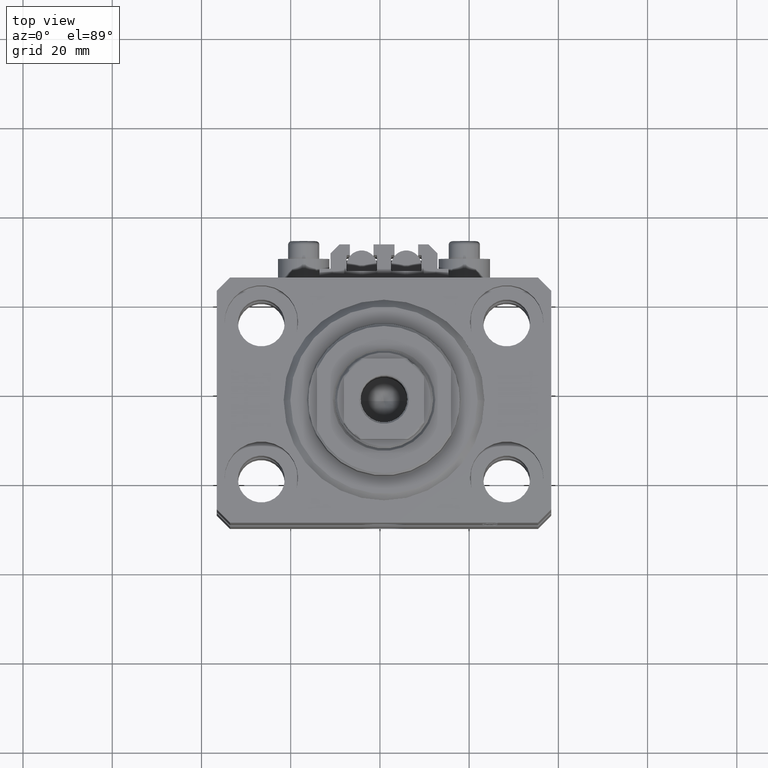
[diagram: clean part render]
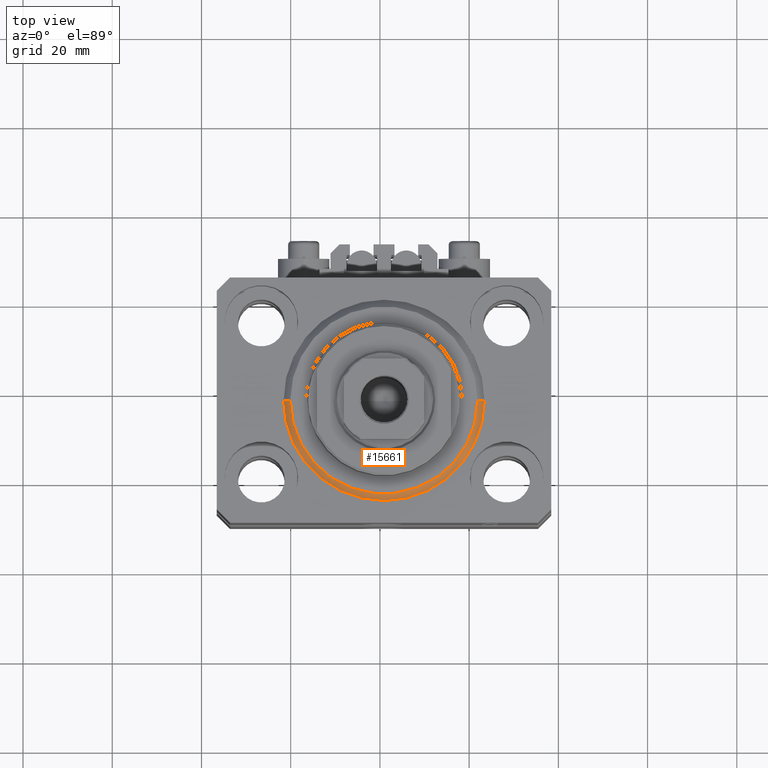
[diagram: same view with one face highlighted and labeled with its STEP entity id]
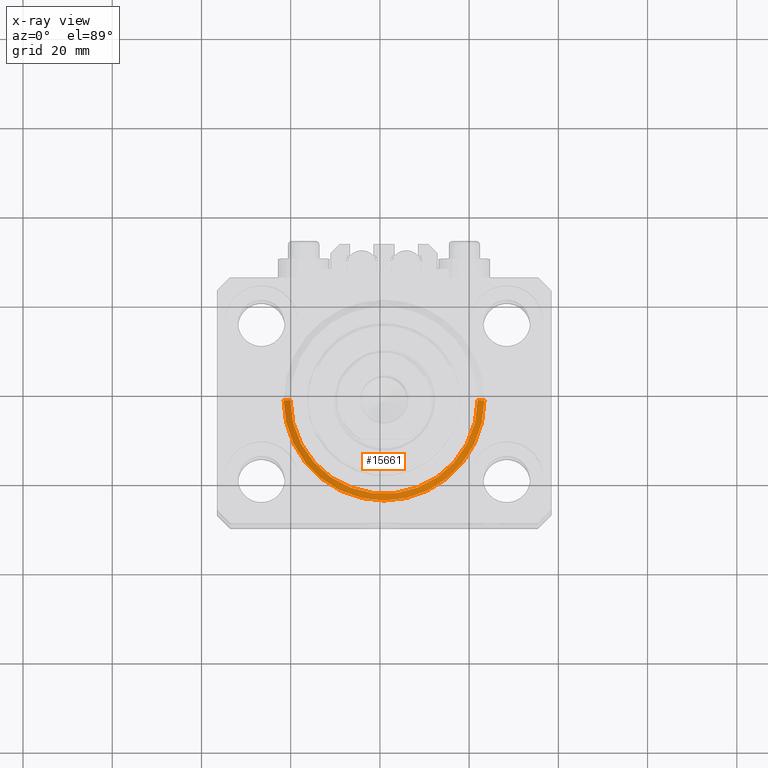
[diagram: x-ray of the same camera — body ghosted, the highlighted face saturated]
A machine part, top view. The second image highlights one B-rep face of the part: STEP entity #15661.
The next image is the same camera in x-ray: the body ghosted, the highlighted face saturated — about 0% of this face is hidden behind the body in this view.
In plain terms, the highlighted conical surface has half-angle 45 deg.
Its self-contained STEP definition (entity closure, byte-faithful):
#1525 = AXIS2_PLACEMENT_3D ( 'NONE', #14559, #37433, #15030 ) ;
#3847 = CARTESIAN_POINT ( 'NONE',  ( -22.50000000000000355, 2.755455298081545172E-15, 1.500000000000001332 ) ) ;
#5598 = VECTOR ( 'NONE', #44438, 1000.000000000000114 ) ;
#7593 = CARTESIAN_POINT ( 'NONE',  ( -22.50000000000000355, 0.000000000000000000, 1.500000000000001332 ) ) ;
#9339 = DIRECTION ( 'NONE',  ( -0.000000000000000000, -0.000000000000000000, 1.000000000000000000 ) ) ;
#11336 = ORIENTED_EDGE ( 'NONE', *, *, #30677, .F. ) ;
#12352 = LINE ( 'NONE', #3847, #39784 ) ;
#12489 = DIRECTION ( 'NONE',  ( 1.000000000000000000, 0.000000000000000000, 0.000000000000000000 ) ) ;
#13156 = VERTEX_POINT ( 'NONE', #47485 ) ;
#14559 = CARTESIAN_POINT ( 'NONE',  ( 0.000000000000000000, 0.000000000000000000, 1.500000000000001332 ) ) ;
#15030 = DIRECTION ( 'NONE',  ( 1.000000000000000000, 0.000000000000000000, 0.000000000000000000 ) ) ;
#15042 = DIRECTION ( 'NONE',  ( -0.7071067811865500152, 8.659560562354963673E-17, 0.7071067811865451302 ) ) ;
#15661 = ADVANCED_FACE ( 'NONE', ( #20290 ), #37937, .T. ) ;
#16390 = CARTESIAN_POINT ( 'NONE',  ( 0.000000000000000000, 0.000000000000000000, 1.500000000000001332 ) ) ;
#16681 = VERTEX_POINT ( 'NONE', #30831 ) ;
#17839 = CIRCLE ( 'NONE', #1525, 22.50000000000000355 ) ;
#18851 = VERTEX_POINT ( 'NONE', #35740 ) ;
#20290 = FACE_OUTER_BOUND ( 'NONE', #38677, .T. ) ;
#23020 = EDGE_CURVE ( 'NONE', #26780, #18851, #17839, .T. ) ;
#23880 = DIRECTION ( 'NONE',  ( 1.000000000000000000, 0.000000000000000000, 0.000000000000000000 ) ) ;
#24193 = ORIENTED_EDGE ( 'NONE', *, *, #28627, .T. ) ;
#26780 = VERTEX_POINT ( 'NONE', #7593 ) ;
#27778 = CARTESIAN_POINT ( 'NONE',  ( 0.000000000000000000, 0.000000000000000000, 0.000000000000000000 ) ) ;
#28627 = EDGE_CURVE ( 'NONE', #16681, #18851, #47872, .T. ) ;
#29586 = CARTESIAN_POINT ( 'NONE',  ( 22.50000000000000355, 0.000000000000000000, 1.500000000000001332 ) ) ;
#30677 = EDGE_CURVE ( 'NONE', #13156, #26780, #12352, .T. ) ;
#30831 = CARTESIAN_POINT ( 'NONE',  ( 20.99999999999998934, 0.000000000000000000, 0.000000000000000000 ) ) ;
#32172 = ORIENTED_EDGE ( 'NONE', *, *, #47660, .F. ) ;
#35678 = ORIENTED_EDGE ( 'NONE', *, *, #23020, .F. ) ;
#35740 = CARTESIAN_POINT ( 'NONE',  ( 22.50000000000000355, 2.755455298081545172E-15, 1.500000000000001332 ) ) ;
#37171 = AXIS2_PLACEMENT_3D ( 'NONE', #27778, #45137, #23880 ) ;
#37433 = DIRECTION ( 'NONE',  ( -0.000000000000000000, -0.000000000000000000, 1.000000000000000000 ) ) ;
#37937 = CONICAL_SURFACE ( 'NONE', #40258, 22.50000000000000355, 0.7853981633974517207 ) ;
#38677 = EDGE_LOOP ( 'NONE', ( #11336, #32172, #24193, #35678 ) ) ;
#39784 = VECTOR ( 'NONE', #15042, 1000.000000000000114 ) ;
#40258 = AXIS2_PLACEMENT_3D ( 'NONE', #16390, #9339, #12489 ) ;
#44438 = DIRECTION ( 'NONE',  ( 0.7071067811865500152, 0.000000000000000000, 0.7071067811865451302 ) ) ;
#45137 = DIRECTION ( 'NONE',  ( -0.000000000000000000, -0.000000000000000000, -1.000000000000000000 ) ) ;
#46510 = CIRCLE ( 'NONE', #37171, 20.99999999999998934 ) ;
#47485 = CARTESIAN_POINT ( 'NONE',  ( -20.99999999999998934, 2.663606788145492628E-15, 0.000000000000000000 ) ) ;
#47660 = EDGE_CURVE ( 'NONE', #16681, #13156, #46510, .T. ) ;
#47872 = LINE ( 'NONE', #29586, #5598 ) ;